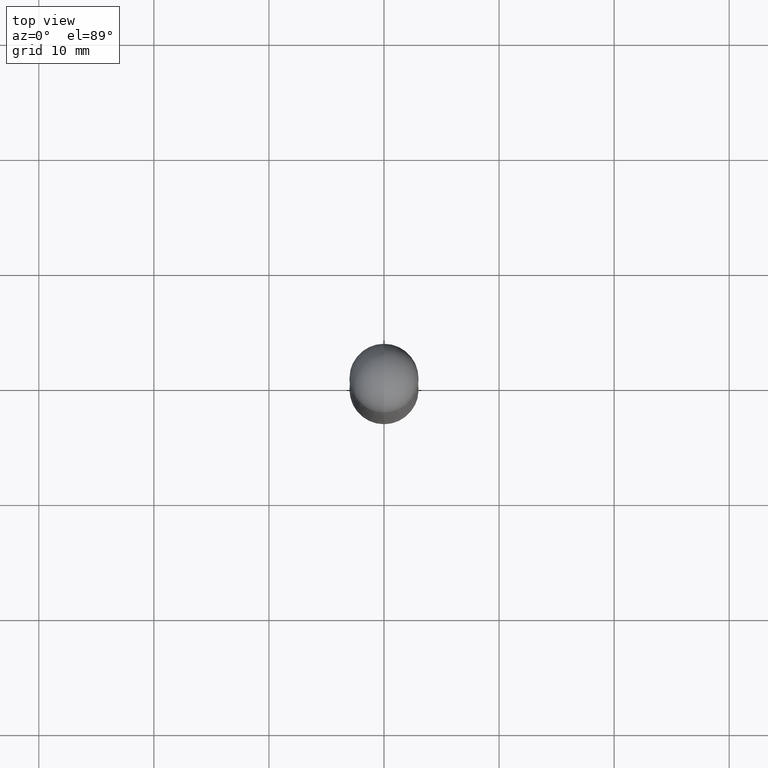
[diagram: clean part render]
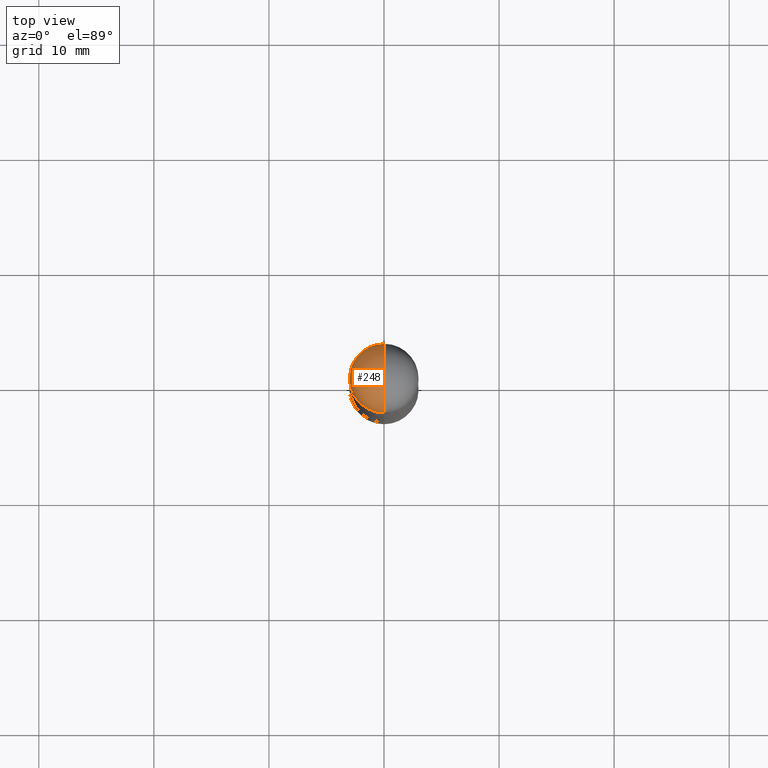
[diagram: same view with one face highlighted and labeled with its STEP entity id]
A machine part, top view. The second image highlights one B-rep face of the part: STEP entity #248.
In plain terms, the highlighted spherical surface has radius 2.9997 mm.
Its self-contained STEP definition (entity closure, byte-faithful):
#52 = EDGE_CURVE ( 'NONE', #699, #516, #244, .T. ) ;
#59 = CARTESIAN_POINT ( 'NONE',  ( 5.445566636056644627E-29, -8.721759586755329923E-15, -0.1181000000000000383 ) ) ;
#66 = CARTESIAN_POINT ( 'NONE',  ( 5.445566636056644627E-29, -8.721759586755329923E-15, -0.1181000000000000383 ) ) ;
#73 = VERTEX_POINT ( 'NONE', #585 ) ;
#98 = AXIS2_PLACEMENT_3D ( 'NONE', #133, #477, #618 ) ;
#114 = DIRECTION ( 'NONE',  ( -1.000000000000000000, 6.982962677686265922E-15, 4.883557194083112340E-29 ) ) ;
#133 = CARTESIAN_POINT ( 'NONE',  ( 5.776686413970530874E-29, -8.247577218615279626E-15, -0.1181000000000000383 ) ) ;
#158 = EDGE_CURVE ( 'NONE', #516, #265, #714, .T. ) ;
#165 = DIRECTION ( 'NONE',  ( 6.982962677686265922E-15, 1.000000000000000000, 3.469747663417769508E-15 ) ) ;
#178 = CARTESIAN_POINT ( 'NONE',  ( 5.445566636056644627E-29, -8.721759586755329923E-15, -0.1181000000000000383 ) ) ;
#194 = CIRCLE ( 'NONE', #609, 0.1181000000000002603 ) ;
#196 = DIRECTION ( 'NONE',  ( 6.860497997771530774E-15, 1.000000000000000000, 0.000000000000000000 ) ) ;
#208 = CIRCLE ( 'NONE', #426, 0.1181000000000002603 ) ;
#244 = CIRCLE ( 'NONE', #98, 0.1180999999999999966 ) ;
#246 = AXIS2_PLACEMENT_3D ( 'NONE', #178, #678, #165 ) ;
#248 = ADVANCED_FACE ( 'NONE', ( #732 ), #289, .T. ) ;
#265 = VERTEX_POINT ( 'NONE', #742 ) ;
#289 = SPHERICAL_SURFACE ( 'NONE', #246, 0.1181000000000002603 ) ;
#304 = AXIS2_PLACEMENT_3D ( 'NONE', #355, #545, #736 ) ;
#355 = CARTESIAN_POINT ( 'NONE',  ( 5.776686413970530874E-29, -8.247577218615279626E-15, -0.1181000000000000383 ) ) ;
#426 = AXIS2_PLACEMENT_3D ( 'NONE', #66, #114, #578 ) ;
#435 = CARTESIAN_POINT ( 'NONE',  ( -0.1180999999999999966, -6.818836485902399312E-15, -0.1181000000000000383 ) ) ;
#447 = CARTESIAN_POINT ( 'NONE',  ( 8.246878922348049620E-16, 0.1180999999999916283, -0.1180999999999996219 ) ) ;
#477 = DIRECTION ( 'NONE',  ( 2.445468806185136597E-29, -3.491481338843145583E-15, 1.000000000000000000 ) ) ;
#495 = ORIENTED_EDGE ( 'NONE', *, *, #158, .T. ) ;
#502 = ORIENTED_EDGE ( 'NONE', *, *, #706, .T. ) ;
#516 = VERTEX_POINT ( 'NONE', #435 ) ;
#545 = DIRECTION ( 'NONE',  ( 2.445468806185136597E-29, -3.491481338843145583E-15, 1.000000000000000000 ) ) ;
#578 = DIRECTION ( 'NONE',  ( -6.982962677686265133E-15, -1.000000000000000000, 0.000000000000000000 ) ) ;
#581 = ORIENTED_EDGE ( 'NONE', *, *, #52, .T. ) ;
#585 = CARTESIAN_POINT ( 'NONE',  ( 5.739426259004713893E-29, -9.126871993523741848E-15, 2.219626494852213988E-16 ) ) ;
#609 = AXIS2_PLACEMENT_3D ( 'NONE', #59, #757, #196 ) ;
#618 = DIRECTION ( 'NONE',  ( 1.000000000000000000, -6.982962677686265133E-15, 0.000000000000000000 ) ) ;
#678 = DIRECTION ( 'NONE',  ( 1.000000000000000000, -6.982962677686265922E-15, -4.883557194083112901E-29 ) ) ;
#699 = VERTEX_POINT ( 'NONE', #447 ) ;
#706 = EDGE_CURVE ( 'NONE', #73, #699, #208, .T. ) ;
#714 = CIRCLE ( 'NONE', #304, 0.1180999999999999966 ) ;
#716 = ORIENTED_EDGE ( 'NONE', *, *, #729, .F. ) ;
#729 = EDGE_CURVE ( 'NONE', #73, #265, #194, .T. ) ;
#732 = FACE_OUTER_BOUND ( 'NONE', #763, .T. ) ;
#736 = DIRECTION ( 'NONE',  ( 1.000000000000000000, -6.982962677686265133E-15, 0.000000000000000000 ) ) ;
#742 = CARTESIAN_POINT ( 'NONE',  ( -8.102248135367625162E-16, -0.1181000000000086009, -0.1181000000000004407 ) ) ;
#757 = DIRECTION ( 'NONE',  ( 1.000000000000000000, -6.860497997771530774E-15, -4.840798879624142912E-29 ) ) ;
#763 = EDGE_LOOP ( 'NONE', ( #716, #502, #581, #495 ) ) ;